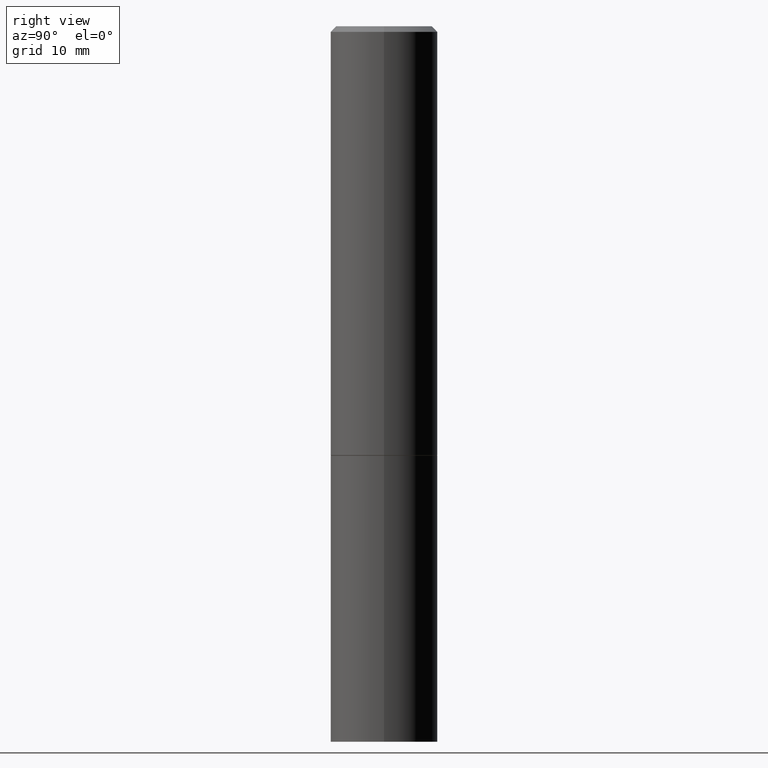
[diagram: clean part render]
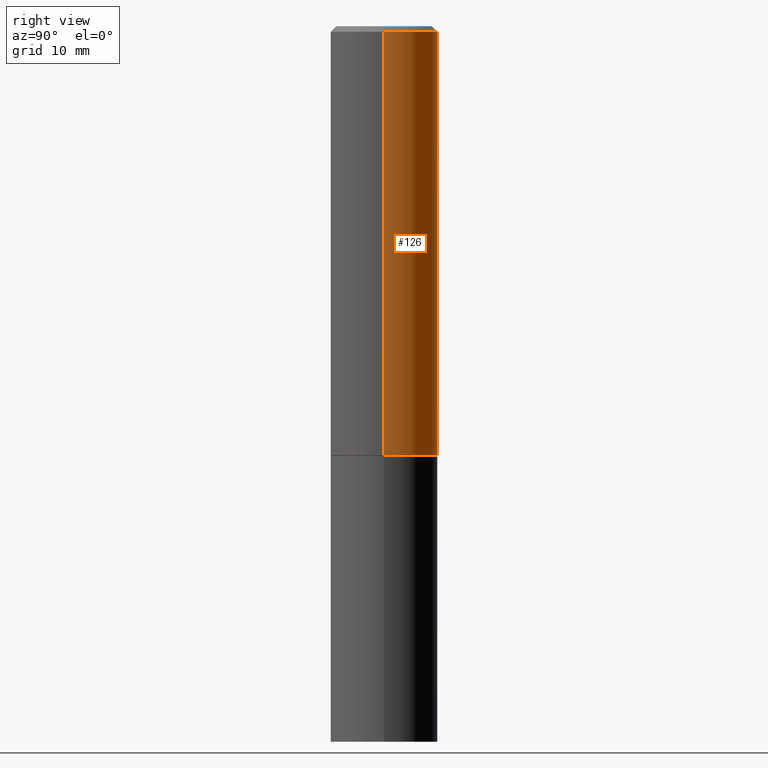
[diagram: same view with one face highlighted and labeled with its STEP entity id]
A machine part, right view. The second image highlights one B-rep face of the part: STEP entity #126.
In plain terms, the highlighted cylindrical surface (partial cylindrical patch) has radius 4.7625 mm, axis along (-0, 0, 1).
Its self-contained STEP definition (entity closure, byte-faithful):
#10 = DIRECTION ( 'NONE',  ( 1.000000000000000000, -6.982962677686265922E-15, 0.000000000000000000 ) ) ;
#11 = CARTESIAN_POINT ( 'NONE',  ( -0.1874999999999999445, 1.332267629550187454E-15, -9.223003294227945188E-30 ) ) ;
#16 = CARTESIAN_POINT ( 'NONE',  ( -0.1874999999999998890, 1.239475875289310921E-15, -0.02000000000000004205 ) ) ;
#45 = FACE_OUTER_BOUND ( 'NONE', #252, .T. ) ;
#79 = EDGE_CURVE ( 'NONE', #270, #342, #310, .T. ) ;
#96 = DIRECTION ( 'NONE',  ( -2.445468806185136877E-29, 3.491481338843145188E-15, 1.000000000000000000 ) ) ;
#101 = CYLINDRICAL_SURFACE ( 'NONE', #247, 0.1874999999999999445 ) ;
#104 = DIRECTION ( 'NONE',  ( 1.000000000000000000, -6.982962677686266711E-15, 4.876176775795935793E-29 ) ) ;
#107 = VECTOR ( 'NONE', #96, 39.37007874015748143 ) ;
#112 = EDGE_CURVE ( 'NONE', #342, #188, #210, .T. ) ;
#113 = ORIENTED_EDGE ( 'NONE', *, *, #112, .F. ) ;
#126 = ADVANCED_FACE ( 'NONE', ( #45 ), #101, .T. ) ;
#128 = DIRECTION ( 'NONE',  ( 1.000000000000000000, -6.982962677686266711E-15, 0.000000000000000000 ) ) ;
#140 = AXIS2_PLACEMENT_3D ( 'NONE', #353, #144, #128 ) ;
#143 = LINE ( 'NONE', #11, #107 ) ;
#144 = DIRECTION ( 'NONE',  ( -2.445468806185136597E-29, 3.491481338843145583E-15, 1.000000000000000000 ) ) ;
#150 = CARTESIAN_POINT ( 'NONE',  ( 0.1874999999999999445, -1.309305502066174614E-15, 9.142831454617376809E-30 ) ) ;
#157 = ORIENTED_EDGE ( 'NONE', *, *, #79, .F. ) ;
#163 = CARTESIAN_POINT ( 'NONE',  ( 0.1875000000000000278, -6.543036028992050967E-15, -1.499000000000000110 ) ) ;
#166 = DIRECTION ( 'NONE',  ( -2.445468806185136597E-29, 3.491481338843145583E-15, 1.000000000000000000 ) ) ;
#168 = ORIENTED_EDGE ( 'NONE', *, *, #295, .T. ) ;
#177 = EDGE_CURVE ( 'NONE', #270, #244, #308, .T. ) ;
#179 = AXIS2_PLACEMENT_3D ( 'NONE', #349, #317, #10 ) ;
#186 = DIRECTION ( 'NONE',  ( -2.445468806185136877E-29, 3.491481338843145188E-15, 1.000000000000000000 ) ) ;
#188 = VERTEX_POINT ( 'NONE', #16 ) ;
#204 = CARTESIAN_POINT ( 'NONE',  ( 0.000000000000000000, 0.000000000000000000, 0.000000000000000000 ) ) ;
#210 = CIRCLE ( 'NONE', #179, 0.1874999999999998890 ) ;
#244 = VERTEX_POINT ( 'NONE', #245 ) ;
#245 = CARTESIAN_POINT ( 'NONE',  ( -0.1875000000000000278, -1.319512447301180005E-15, -1.499000000000000110 ) ) ;
#247 = AXIS2_PLACEMENT_3D ( 'NONE', #204, #166, #104 ) ;
#252 = EDGE_LOOP ( 'NONE', ( #357, #168, #113, #157 ) ) ;
#258 = CARTESIAN_POINT ( 'NONE',  ( 0.1874999999999998890, -1.356173001359024480E-15, -0.02000000000000004205 ) ) ;
#270 = VERTEX_POINT ( 'NONE', #163 ) ;
#294 = VECTOR ( 'NONE', #186, 39.37007874015748143 ) ;
#295 = EDGE_CURVE ( 'NONE', #244, #188, #143, .T. ) ;
#308 = CIRCLE ( 'NONE', #140, 0.1875000000000000278 ) ;
#310 = LINE ( 'NONE', #150, #294 ) ;
#317 = DIRECTION ( 'NONE',  ( -2.445468806185136597E-29, 3.491481338843145583E-15, 1.000000000000000000 ) ) ;
#342 = VERTEX_POINT ( 'NONE', #258 ) ;
#349 = CARTESIAN_POINT ( 'NONE',  ( 4.890937612370283668E-31, -6.982962677686305168E-17, -0.02000000000000004205 ) ) ;
#353 = CARTESIAN_POINT ( 'NONE',  ( 3.665757740471519853E-29, -5.233730526925875958E-15, -1.499000000000000110 ) ) ;
#357 = ORIENTED_EDGE ( 'NONE', *, *, #177, .T. ) ;